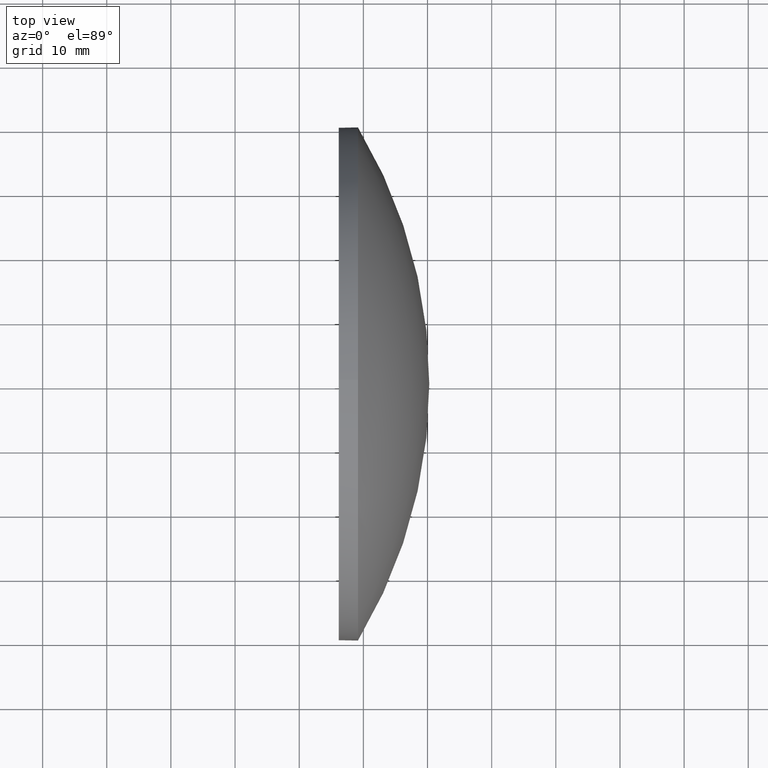
[diagram: clean part render]
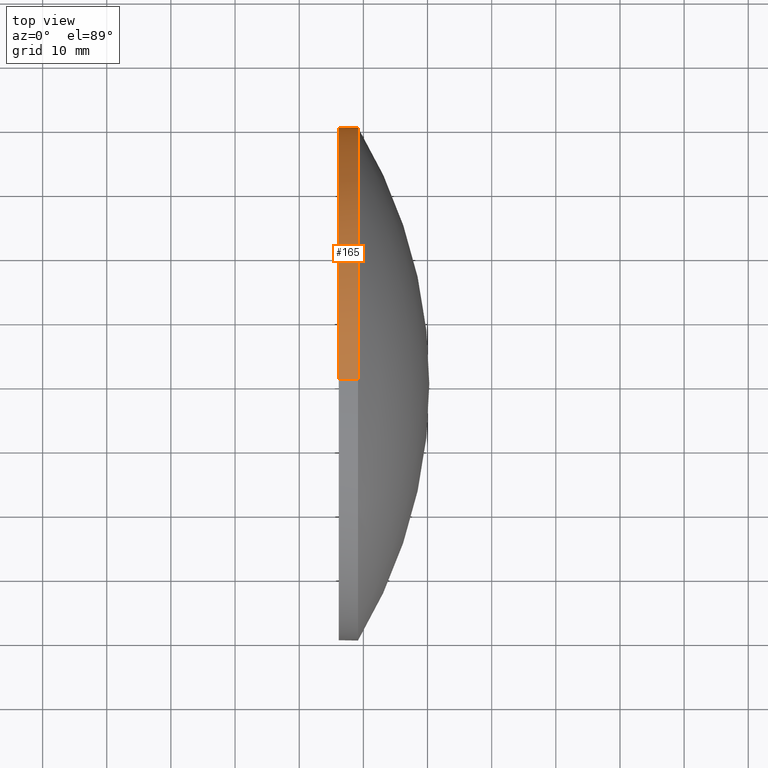
[diagram: same view with one face highlighted and labeled with its STEP entity id]
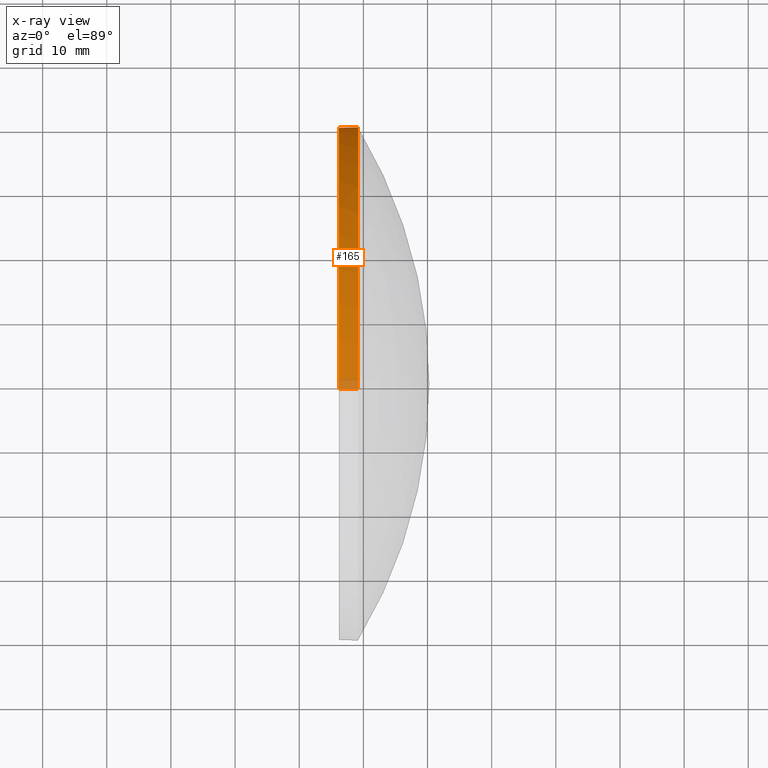
[diagram: x-ray of the same camera — body ghosted, the highlighted face saturated]
A machine part, top view. The second image highlights one B-rep face of the part: STEP entity #165.
The next image is the same camera in x-ray: the body ghosted, the highlighted face saturated — about 3% of this face is hidden behind the body in this view.
In plain terms, the highlighted cylindrical surface (partial cylindrical patch) has radius 40 mm, axis along (-1, -0, -0).
Its self-contained STEP definition (entity closure, byte-faithful):
#3 = EDGE_LOOP ( 'NONE', ( #125, #17, #144, #68, #64 ) ) ;
#6 = LINE ( 'NONE', #142, #156 ) ;
#12 = EDGE_CURVE ( 'NONE', #16, #167, #110, .T. ) ;
#14 = DIRECTION ( 'NONE',  ( 0.0000000000000000000, 0.0000000000000000000, 1.000000000000000000 ) ) ;
#16 = VERTEX_POINT ( 'NONE', #92 ) ;
#17 = ORIENTED_EDGE ( 'NONE', *, *, #146, .T. ) ;
#19 = FACE_OUTER_BOUND ( 'NONE', #3, .T. ) ;
#33 = CARTESIAN_POINT ( 'NONE',  ( 239.1561263384603500, 130.0418907599245100, -40.00000000000000700 ) ) ;
#50 = CARTESIAN_POINT ( 'NONE',  ( 239.1561263384603500, 130.0418907599245100, 40.00000000000000700 ) ) ;
#54 = DIRECTION ( 'NONE',  ( -1.000000000000000000, -0.0000000000000000000, -0.0000000000000000000 ) ) ;
#64 = ORIENTED_EDGE ( 'NONE', *, *, #164, .T. ) ;
#66 = AXIS2_PLACEMENT_3D ( 'NONE', #70, #54, #71 ) ;
#68 = ORIENTED_EDGE ( 'NONE', *, *, #90, .F. ) ;
#70 = CARTESIAN_POINT ( 'NONE',  ( 239.1561263384603500, 130.0418907599245100, 0.0000000000000000000 ) ) ;
#71 = DIRECTION ( 'NONE',  ( 0.0000000000000000000, 0.0000000000000000000, 1.000000000000000000 ) ) ;
#72 = AXIS2_PLACEMENT_3D ( 'NONE', #170, #103, #14 ) ;
#74 = VECTOR ( 'NONE', #161, 1000.000000000000000 ) ;
#76 = VERTEX_POINT ( 'NONE', #50 ) ;
#84 = DIRECTION ( 'NONE',  ( 0.0000000000000000000, 0.0000000000000000000, 1.000000000000000000 ) ) ;
#85 = CARTESIAN_POINT ( 'NONE',  ( 217.3311486608872700, 130.0418907599245100, 0.0000000000000000000 ) ) ;
#87 = CARTESIAN_POINT ( 'NONE',  ( 239.1561263384603500, 130.0418907599245100, 0.0000000000000000000 ) ) ;
#90 = EDGE_CURVE ( 'NONE', #76, #16, #115, .T. ) ;
#92 = CARTESIAN_POINT ( 'NONE',  ( 236.1561263384603500, 130.0418907599245100, 40.00000000000000700 ) ) ;
#98 = AXIS2_PLACEMENT_3D ( 'NONE', #87, #124, #84 ) ;
#103 = DIRECTION ( 'NONE',  ( -1.000000000000000000, -0.0000000000000000000, -0.0000000000000000000 ) ) ;
#110 = CIRCLE ( 'NONE', #72, 40.00000000000000700 ) ;
#112 = DIRECTION ( 'NONE',  ( -1.000000000000000000, -0.0000000000000000000, -0.0000000000000000000 ) ) ;
#115 = LINE ( 'NONE', #175, #74 ) ;
#123 = CARTESIAN_POINT ( 'NONE',  ( 239.1561263384603500, 170.0418907599244800, 0.0000000000000000000 ) ) ;
#124 = DIRECTION ( 'NONE',  ( -1.000000000000000000, -0.0000000000000000000, -0.0000000000000000000 ) ) ;
#125 = ORIENTED_EDGE ( 'NONE', *, *, #135, .T. ) ;
#128 = VERTEX_POINT ( 'NONE', #33 ) ;
#135 = EDGE_CURVE ( 'NONE', #173, #128, #185, .T. ) ;
#141 = DIRECTION ( 'NONE',  ( -1.000000000000000000, -0.0000000000000000000, -0.0000000000000000000 ) ) ;
#142 = CARTESIAN_POINT ( 'NONE',  ( 217.3311486608872700, 130.0418907599245100, -40.00000000000000700 ) ) ;
#144 = ORIENTED_EDGE ( 'NONE', *, *, #12, .F. ) ;
#146 = EDGE_CURVE ( 'NONE', #128, #167, #6, .T. ) ;
#150 = AXIS2_PLACEMENT_3D ( 'NONE', #85, #141, #153 ) ;
#153 = DIRECTION ( 'NONE',  ( 0.0000000000000000000, 0.0000000000000000000, 1.000000000000000000 ) ) ;
#156 = VECTOR ( 'NONE', #112, 1000.000000000000000 ) ;
#161 = DIRECTION ( 'NONE',  ( -1.000000000000000000, -0.0000000000000000000, -0.0000000000000000000 ) ) ;
#164 = EDGE_CURVE ( 'NONE', #76, #173, #177, .T. ) ;
#165 = ADVANCED_FACE ( 'NONE', ( #19 ), #169, .T. ) ;
#167 = VERTEX_POINT ( 'NONE', #179 ) ;
#169 = CYLINDRICAL_SURFACE ( 'NONE', #150, 40.00000000000000700 ) ;
#170 = CARTESIAN_POINT ( 'NONE',  ( 236.1561263384603500, 130.0418907599245100, 0.0000000000000000000 ) ) ;
#173 = VERTEX_POINT ( 'NONE', #123 ) ;
#175 = CARTESIAN_POINT ( 'NONE',  ( 217.3311486608872700, 130.0418907599245100, 40.00000000000000700 ) ) ;
#177 = CIRCLE ( 'NONE', #66, 40.00000000000000700 ) ;
#179 = CARTESIAN_POINT ( 'NONE',  ( 236.1561263384603500, 130.0418907599245100, -40.00000000000000700 ) ) ;
#185 = CIRCLE ( 'NONE', #98, 40.00000000000000700 ) ;